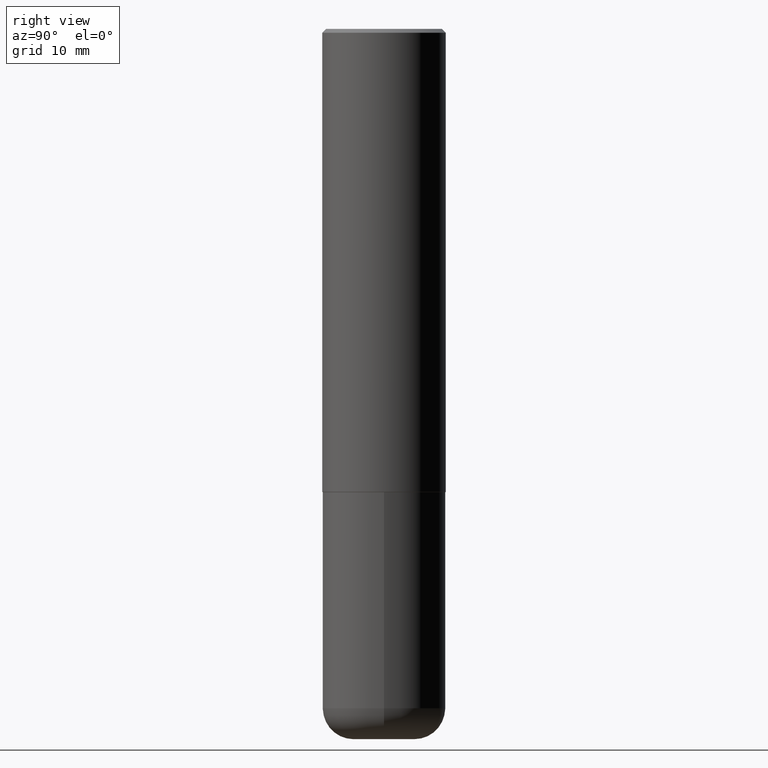
[diagram: clean part render]
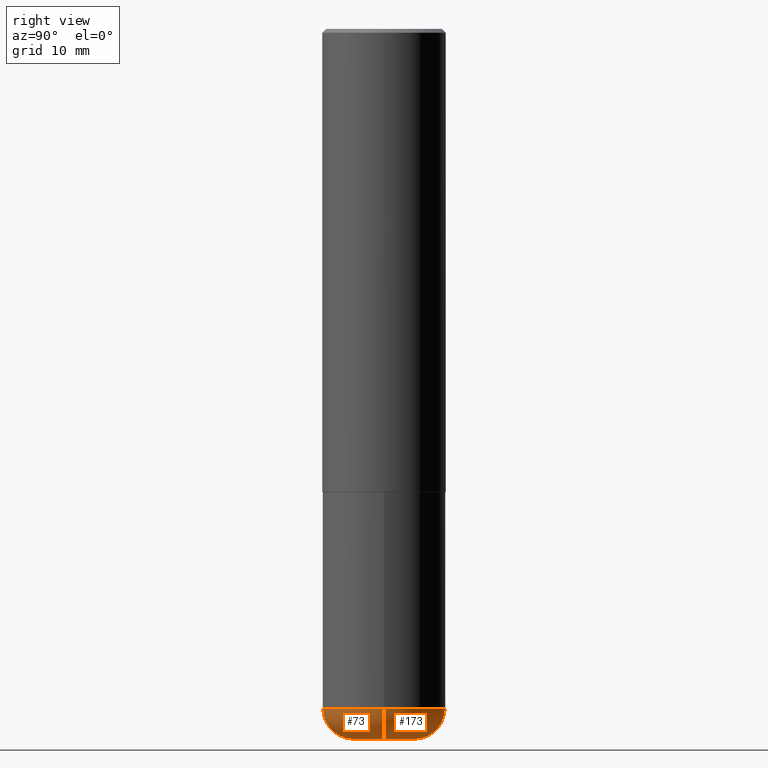
[diagram: same view with one multi-face feature highlighted, each face labeled with its STEP entity id]
A machine part, right view. The highlighted faces form ONE feature: a constant-radius fillet chain: 2 tangent blend faces with common blend radius 4.0005 mm. The faces share edges in the B-rep.
Their STEP definitions:
[1] entity #173 (Torus):
#8 = CIRCLE ( 'NONE', #331, 0.1574999999999998623 ) ;
#9 = VERTEX_POINT ( 'NONE', #117 ) ;
#13 = ORIENTED_EDGE ( 'NONE', *, *, #308, .T. ) ;
#22 = CARTESIAN_POINT ( 'NONE',  ( 0.1574500000000000621, -1.374561288289157201E-14, -3.621999999999999442 ) ) ;
#64 = CIRCLE ( 'NONE', #399, 0.3149500000000000077 ) ;
#67 = CARTESIAN_POINT ( 'NONE',  ( 0.3149499999999999522, -1.429552119375937009E-14, -3.464500000000000135 ) ) ;
#112 = DIRECTION ( 'NONE',  ( -2.445468806185136597E-29, 3.491481338843145583E-15, 1.000000000000000000 ) ) ;
#117 = CARTESIAN_POINT ( 'NONE',  ( -0.3149499999999999522, -9.858382752145642660E-15, -3.464500000000000135 ) ) ;
#124 = CIRCLE ( 'NONE', #306, 0.1574500000000000621 ) ;
#130 = CARTESIAN_POINT ( 'NONE',  ( -0.1574500000000000066, -1.097748756096779869E-14, -3.464499999999999691 ) ) ;
#134 = DIRECTION ( 'NONE',  ( 1.000000000000000000, -6.982962677686263555E-15, 0.000000000000000000 ) ) ;
#138 = CIRCLE ( 'NONE', #236, 0.1574999999999998623 ) ;
#152 = ORIENTED_EDGE ( 'NONE', *, *, #406, .T. ) ;
#154 = VERTEX_POINT ( 'NONE', #67 ) ;
#165 = DIRECTION ( 'NONE',  ( 1.000000000000000000, -6.982962677686268288E-15, 0.000000000000000000 ) ) ;
#172 = DIRECTION ( 'NONE',  ( 1.000000000000000000, -6.982962677686266711E-15, 4.883557194083112901E-29 ) ) ;
#173 = ADVANCED_FACE ( 'NONE', ( #226 ), #175, .T. ) ;
#175 = TOROIDAL_SURFACE ( 'NONE', #267, 0.1574500000000000066, 0.1574999999999998346 ) ;
#180 = VERTEX_POINT ( 'NONE', #390 ) ;
#185 = EDGE_LOOP ( 'NONE', ( #152, #13, #240, #372 ) ) ;
#201 = EDGE_CURVE ( 'NONE', #314, #154, #138, .T. ) ;
#203 = EDGE_CURVE ( 'NONE', #154, #9, #64, .T. ) ;
#226 = FACE_OUTER_BOUND ( 'NONE', #185, .T. ) ;
#227 = DIRECTION ( 'NONE',  ( -2.445468806185136597E-29, 3.491481338843145583E-15, 1.000000000000000000 ) ) ;
#236 = AXIS2_PLACEMENT_3D ( 'NONE', #343, #262, #165 ) ;
#240 = ORIENTED_EDGE ( 'NONE', *, *, #203, .F. ) ;
#256 = DIRECTION ( 'NONE',  ( 7.105427357601001859E-15, 1.000000000000000000, -3.491481338843145583E-15 ) ) ;
#262 = DIRECTION ( 'NONE',  ( -6.982962677686266711E-15, -1.000000000000000000, 3.491481338843145583E-15 ) ) ;
#267 = AXIS2_PLACEMENT_3D ( 'NONE', #318, #227, #172 ) ;
#285 = DIRECTION ( 'NONE',  ( -2.445468806185136597E-29, 3.491481338843145583E-15, 1.000000000000000000 ) ) ;
#306 = AXIS2_PLACEMENT_3D ( 'NONE', #413, #285, #134 ) ;
#308 = EDGE_CURVE ( 'NONE', #180, #9, #8, .T. ) ;
#314 = VERTEX_POINT ( 'NONE', #22 ) ;
#318 = CARTESIAN_POINT ( 'NONE',  ( 8.472326679028403758E-29, -1.209623709842207707E-14, -3.464499999999999691 ) ) ;
#331 = AXIS2_PLACEMENT_3D ( 'NONE', #130, #256, #388 ) ;
#343 = CARTESIAN_POINT ( 'NONE',  ( 0.1574500000000000066, -1.319570457202378025E-14, -3.464499999999999691 ) ) ;
#346 = DIRECTION ( 'NONE',  ( 1.000000000000000000, -6.982962677686269866E-15, 0.000000000000000000 ) ) ;
#372 = ORIENTED_EDGE ( 'NONE', *, *, #201, .F. ) ;
#388 = DIRECTION ( 'NONE',  ( -1.000000000000000000, 7.105427357601003436E-15, 0.000000000000000000 ) ) ;
#390 = CARTESIAN_POINT ( 'NONE',  ( -0.1574500000000000621, -1.069288931199061971E-14, -3.621999999999999442 ) ) ;
#395 = CARTESIAN_POINT ( 'NONE',  ( 8.472326679028406000E-29, -1.209623709842207864E-14, -3.464500000000000135 ) ) ;
#399 = AXIS2_PLACEMENT_3D ( 'NONE', #395, #112, #346 ) ;
#406 = EDGE_CURVE ( 'NONE', #314, #180, #124, .T. ) ;
#413 = CARTESIAN_POINT ( 'NONE',  ( 8.857488016002563354E-29, -1.264614540928987041E-14, -3.621999999999999442 ) ) ;
[2] entity #73 (Torus):
#8 = CIRCLE ( 'NONE', #331, 0.1574999999999998623 ) ;
#9 = VERTEX_POINT ( 'NONE', #117 ) ;
#22 = CARTESIAN_POINT ( 'NONE',  ( 0.1574500000000000621, -1.374561288289157201E-14, -3.621999999999999442 ) ) ;
#28 = AXIS2_PLACEMENT_3D ( 'NONE', #162, #101, #222 ) ;
#67 = CARTESIAN_POINT ( 'NONE',  ( 0.3149499999999999522, -1.429552119375937009E-14, -3.464500000000000135 ) ) ;
#70 = EDGE_CURVE ( 'NONE', #180, #314, #102, .T. ) ;
#71 = DIRECTION ( 'NONE',  ( 1.000000000000000000, -6.982962677686269866E-15, 0.000000000000000000 ) ) ;
#73 = ADVANCED_FACE ( 'NONE', ( #337 ), #86, .T. ) ;
#75 = ORIENTED_EDGE ( 'NONE', *, *, #308, .F. ) ;
#86 = TOROIDAL_SURFACE ( 'NONE', #384, 0.1574500000000000066, 0.1574999999999998346 ) ;
#101 = DIRECTION ( 'NONE',  ( -2.445468806185136597E-29, 3.491481338843145583E-15, 1.000000000000000000 ) ) ;
#102 = CIRCLE ( 'NONE', #28, 0.1574500000000000621 ) ;
#117 = CARTESIAN_POINT ( 'NONE',  ( -0.3149499999999999522, -9.858382752145642660E-15, -3.464500000000000135 ) ) ;
#119 = DIRECTION ( 'NONE',  ( -2.445468806185136597E-29, 3.491481338843145583E-15, 1.000000000000000000 ) ) ;
#130 = CARTESIAN_POINT ( 'NONE',  ( -0.1574500000000000066, -1.097748756096779869E-14, -3.464499999999999691 ) ) ;
#137 = CARTESIAN_POINT ( 'NONE',  ( 8.472326679028406000E-29, -1.209623709842207864E-14, -3.464500000000000135 ) ) ;
#138 = CIRCLE ( 'NONE', #236, 0.1574999999999998623 ) ;
#149 = ORIENTED_EDGE ( 'NONE', *, *, #201, .T. ) ;
#150 = CARTESIAN_POINT ( 'NONE',  ( 8.472326679028403758E-29, -1.209623709842207707E-14, -3.464499999999999691 ) ) ;
#154 = VERTEX_POINT ( 'NONE', #67 ) ;
#162 = CARTESIAN_POINT ( 'NONE',  ( 8.857488016002563354E-29, -1.264614540928987041E-14, -3.621999999999999442 ) ) ;
#165 = DIRECTION ( 'NONE',  ( 1.000000000000000000, -6.982962677686268288E-15, 0.000000000000000000 ) ) ;
#179 = ORIENTED_EDGE ( 'NONE', *, *, #199, .F. ) ;
#180 = VERTEX_POINT ( 'NONE', #390 ) ;
#181 = AXIS2_PLACEMENT_3D ( 'NONE', #137, #349, #71 ) ;
#199 = EDGE_CURVE ( 'NONE', #9, #154, #325, .T. ) ;
#201 = EDGE_CURVE ( 'NONE', #314, #154, #138, .T. ) ;
#222 = DIRECTION ( 'NONE',  ( 1.000000000000000000, -6.982962677686263555E-15, 0.000000000000000000 ) ) ;
#234 = ORIENTED_EDGE ( 'NONE', *, *, #70, .T. ) ;
#236 = AXIS2_PLACEMENT_3D ( 'NONE', #343, #262, #165 ) ;
#243 = DIRECTION ( 'NONE',  ( 1.000000000000000000, -6.982962677686266711E-15, 4.883557194083112901E-29 ) ) ;
#255 = EDGE_LOOP ( 'NONE', ( #75, #234, #149, #179 ) ) ;
#256 = DIRECTION ( 'NONE',  ( 7.105427357601001859E-15, 1.000000000000000000, -3.491481338843145583E-15 ) ) ;
#262 = DIRECTION ( 'NONE',  ( -6.982962677686266711E-15, -1.000000000000000000, 3.491481338843145583E-15 ) ) ;
#308 = EDGE_CURVE ( 'NONE', #180, #9, #8, .T. ) ;
#314 = VERTEX_POINT ( 'NONE', #22 ) ;
#325 = CIRCLE ( 'NONE', #181, 0.3149500000000000077 ) ;
#331 = AXIS2_PLACEMENT_3D ( 'NONE', #130, #256, #388 ) ;
#337 = FACE_OUTER_BOUND ( 'NONE', #255, .T. ) ;
#343 = CARTESIAN_POINT ( 'NONE',  ( 0.1574500000000000066, -1.319570457202378025E-14, -3.464499999999999691 ) ) ;
#349 = DIRECTION ( 'NONE',  ( -2.445468806185136597E-29, 3.491481338843145583E-15, 1.000000000000000000 ) ) ;
#384 = AXIS2_PLACEMENT_3D ( 'NONE', #150, #119, #243 ) ;
#388 = DIRECTION ( 'NONE',  ( -1.000000000000000000, 7.105427357601003436E-15, 0.000000000000000000 ) ) ;
#390 = CARTESIAN_POINT ( 'NONE',  ( -0.1574500000000000621, -1.069288931199061971E-14, -3.621999999999999442 ) ) ;